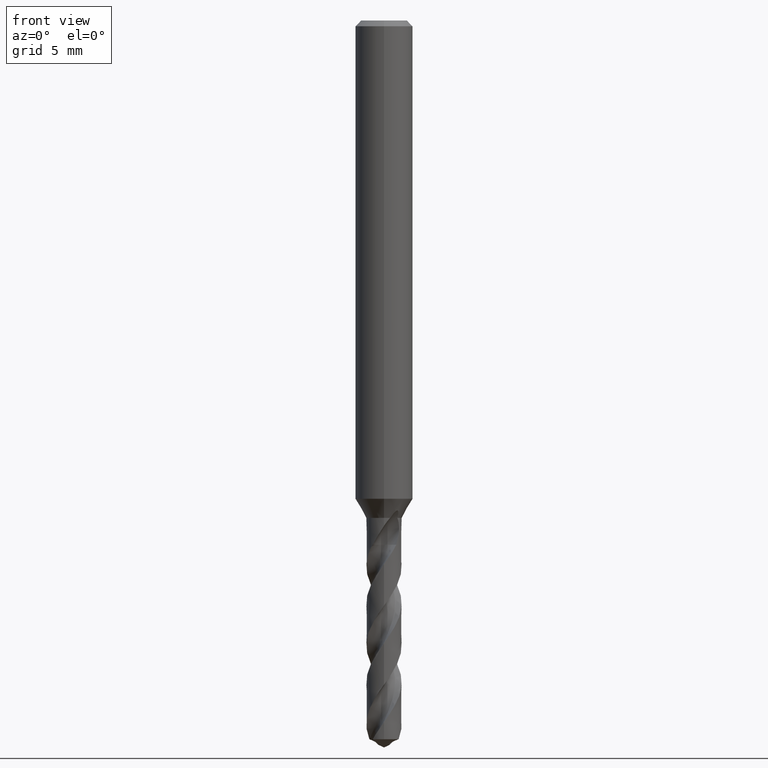
[diagram: clean part render]
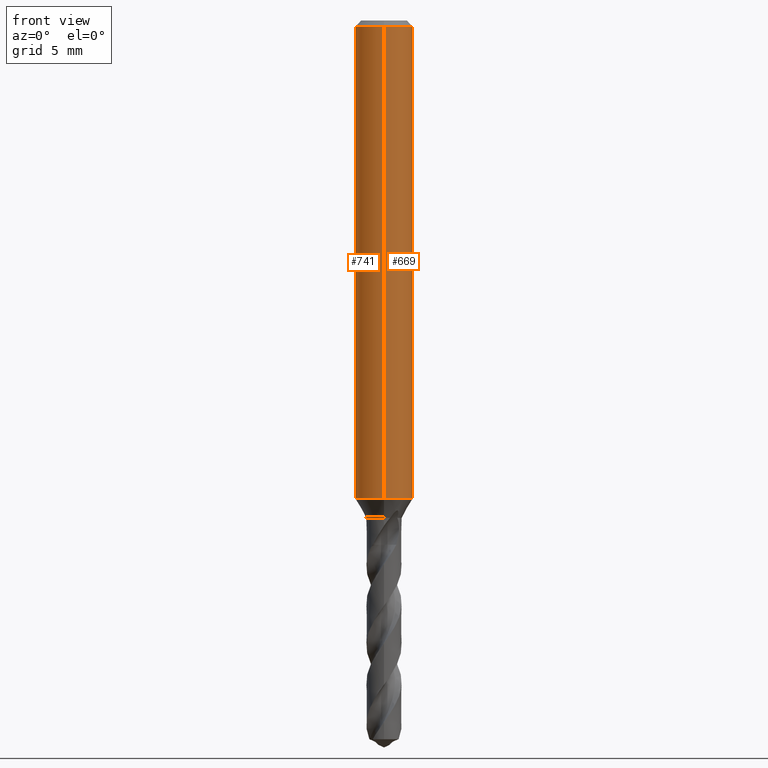
[diagram: same view with one multi-face feature highlighted, each face labeled with its STEP entity id]
A machine part, front view. The highlighted faces form ONE feature: a constant-radius fillet chain: 2 tangent blend faces with common blend radius 1.5 mm. The faces share edges in the B-rep.
Their STEP definitions:
[1] entity #741 (Cylinder):
#299=EDGE_CURVE('',#441,#593,#830,.T.);
#315=VERTEX_POINT('',#848);
#323=EDGE_CURVE('',#359,#507,#856,.T.);
#349=VERTEX_POINT('',#883);
#359=VERTEX_POINT('',#894);
#409=EDGE_CURVE('',#503,#349,#949,.T.);
#417=EDGE_CURVE('',#507,#769,#958,.T.);
#441=VERTEX_POINT('',#985);
#443=VERTEX_POINT('',#987);
#457=EDGE_CURVE('',#593,#503,#1003,.T.);
#469=EDGE_CURVE('',#789,#441,#1017,.T.);
#503=VERTEX_POINT('',#1055);
#507=VERTEX_POINT('',#1060);
#511=EDGE_CURVE('',#795,#789,#1065,.T.);
#515=EDGE_CURVE('',#769,#315,#1070,.T.);
#591=EDGE_CURVE('',#795,#315,#1155,.T.);
#593=VERTEX_POINT('',#1157);
#647=EDGE_CURVE('',#443,#667,#1217,.T.);
#667=VERTEX_POINT('',#1238);
#685=EDGE_CURVE('',#667,#359,#1257,.T.);
#739=EDGE_CURVE('',#349,#443,#1313,.T.);
#741=ADVANCED_FACE('',(#1315),#1316,.T.);
#769=VERTEX_POINT('',#1344);
#789=VERTEX_POINT('',#1368);
#795=VERTEX_POINT('',#1374);
#830=LINE('',#1404,#1405);
#848=CARTESIAN_POINT('',(0.0,1.5,-25.0));
#856=ELLIPSE('',#1468,1.67239264806429,1.5);
#883=CARTESIAN_POINT('',(-0.562333990228013,1.39060435905913,-20.3171221986971));
#894=CARTESIAN_POINT('',(-3.62303867403788E-016,1.5,-21.7128911336578));
#949=B_SPLINE_CURVE_WITH_KNOTS('',3,(#2861,#2862,#2863,#2864,#2865,#2866,#2867,#2868,#2869,#2870,#2871,#2872,#2873,#2874,#2875,#2876,#2877,#2878,#2879,#2880,#2881,#2882,#2883,#2884,#2885,#2886,#2887),.UNSPECIFIED.,.F.,.F.,(4,2,3,2,2,2,2,2,2,2,2,2,4),(-0.555570148161677,-0.277785074080839,0.0,0.277785074080839,0.555570148161677,0.838954672448038,1.1223391967344,1.3938603912747,1.66538158581499,1.94034344792182,2.21530531002864,2.49026717213547,2.76522903424229),.UNSPECIFIED.);
#958=B_SPLINE_CURVE_WITH_KNOTS('',3,(#2910,#2911,#2912,#2913,#2914,#2915,#2916,#2917,#2918,#2919,#2920,#2921,#2922,#2923,#2924,#2925),.UNSPECIFIED.,.F.,.F.,(4,2,2,2,2,2,2,4),(0.656882363151586,0.985323544727379,1.31376472630317,1.61579827194463,1.91783181758608,2.21986536322754,2.52189890886899,2.82957976825427),.UNSPECIFIED.);
#985=CARTESIAN_POINT('',(0.0,1.5,-0.300000000000001));
#987=CARTESIAN_POINT('',(-1.0350734039088,1.08564407082647,-20.3171221986971));
#1003=B_SPLINE_CURVE_WITH_KNOTS('',3,(#3088,#3089,#3090,#3091,#3092,#3093,#3094,#3095,#3096,#3097,#3098,#3099,#3100,#3101,#3102,#3103,#3104,#3105,#3106,#3107,#3108,#3109,#3110,#3111,#3112,#3113,#3114),.UNSPECIFIED.,.F.,.F.,(4,2,3,2,2,2,2,2,2,2,2,2,4),(-0.555570148161677,-0.277785074080839,0.0,0.277785074080839,0.555570148161677,0.838954672448038,1.1223391967344,1.3938603912747,1.66538158581499,1.94034344792182,2.21530531002864,2.49026717213547,2.76522903424229),.UNSPECIFIED.);
#1017=CIRCLE('',#3135,1.5);
#1055=CARTESIAN_POINT('',(-0.486378944383048,1.4189557859429,-20.6432837483006));
#1060=CARTESIAN_POINT('',(-1.337052752443,0.679919066642939,-22.3720803908795));
#1065=LINE('',#3514,#3515);
#1070=LINE('',#3521,#3522);
#1155=CIRCLE('',#3941,1.5);
#1157=CARTESIAN_POINT('',(1.07028167063725E-015,1.5,-21.0232688117743));
#1217=B_SPLINE_CURVE_WITH_KNOTS('',3,(#4473,#4474,#4475,#4476,#4477,#4478,#4479,#4480,#4481,#4482,#4483,#4484,#4485,#4486,#4487,#4488,#4489,#4490,#4491,#4492),.UNSPECIFIED.,.F.,.F.,(4,2,2,2,2,2,2,2,2,4),(3.61773460345543,3.85395724262809,4.09017988180075,4.32640252097341,4.79884779931873,5.25384789829177,5.48134794777829,5.7088479972648,5.95533017953676,6.20181236180872),.UNSPECIFIED.);
#1238=CARTESIAN_POINT('',(1.17859584229481E-016,1.5,-21.5000801551881));
#1257=LINE('',#4735,#4736);
#1313=CIRCLE('',#5056,1.5);
#1315=FACE_OUTER_BOUND('',#5058,.T.);
#1316=CYLINDRICAL_SURFACE('',#5059,1.5);
#1344=CARTESIAN_POINT('',(-1.44945831354929E-017,1.5,-23.0310253601033));
#1368=CARTESIAN_POINT('',(1.83690953073357E-016,-1.5,-0.300000000000001));
#1374=CARTESIAN_POINT('',(1.83690953073357E-016,-1.5,-25.0));
#1404=CARTESIAN_POINT('',(-1.83690953073357E-016,1.5,-12.65));
#1405=VECTOR('',#5275,1.0);
#1468=AXIS2_PLACEMENT_3D('',#5296,#5297,#5298);
#2861=CARTESIAN_POINT('',(0.668140181180239,1.34297754943723,-19.816635075886));
#2862=CARTESIAN_POINT('',(0.72954561541178,1.31242794124006,-19.8788438588981));
#2863=CARTESIAN_POINT('',(0.783560352001634,1.27981669553828,-19.9575082882911));
#2864=CARTESIAN_POINT('',(0.856513351014311,1.23218614058296,-20.132478185051));
#2865=CARTESIAN_POINT('',(0.875400981188567,1.21806121444453,-20.2290469878932));
#2866=CARTESIAN_POINT('',(0.875400981188567,1.21806121444453,-20.3216420125868));
#2867=CARTESIAN_POINT('',(0.875400981188567,1.21806121444453,-20.4142370372804));
#2868=CARTESIAN_POINT('',(0.856513351014311,1.23218614058296,-20.5108058401225));
#2869=CARTESIAN_POINT('',(0.783560352001634,1.27981669553828,-20.6857757368825));
#2870=CARTESIAN_POINT('',(0.72954561541178,1.31242794124006,-20.7644401662755));
#2871=CARTESIAN_POINT('',(0.60549696744429,1.37414296109493,-20.8901117053001));
#2872=CARTESIAN_POINT('',(0.52594358793364,1.40783000818906,-20.945820443328));
#2873=CARTESIAN_POINT('',(0.348504567526036,1.46189827571051,-21.0210790623878));
#2874=CARTESIAN_POINT('',(0.250472190188546,1.48195366272155,-21.0405166027747));
#2875=CARTESIAN_POINT('',(0.0665134459332673,1.50125530483568,-21.0405166027747));
#2876=CARTESIAN_POINT('',(-0.0296567030390787,1.50231596180862,-21.0225191030741));
#2877=CARTESIAN_POINT('',(-0.206115087377689,1.48840496513252,-20.9496420023373));
#2878=CARTESIAN_POINT('',(-0.286451100530325,1.47383453037813,-20.8948020659474));
#2879=CARTESIAN_POINT('',(-0.413930554322423,1.44326440842702,-20.7683224497832));
#2880=CARTESIAN_POINT('',(-0.469556401354002,1.42515667708804,-20.6877724765815));
#2881=CARTESIAN_POINT('',(-0.543783863835251,1.3985185002205,-20.5103125850334));
#2882=CARTESIAN_POINT('',(-0.562348199187247,1.39059861314143,-20.4132959666224));
#2883=CARTESIAN_POINT('',(-0.562348199187247,1.39059861314143,-20.2299880585512));
#2884=CARTESIAN_POINT('',(-0.543783863835251,1.3985185002205,-20.1329714401401));
#2885=CARTESIAN_POINT('',(-0.469556401354002,1.42515667708804,-19.9555115485921));
#2886=CARTESIAN_POINT('',(-0.413930554322424,1.44326440842702,-19.8749615753903));
#2887=CARTESIAN_POINT('',(-0.349789520911262,1.45864570443294,-19.8113236082914));
#2910=CARTESIAN_POINT('',(-1.37998432118956,0.587914341780333,-22.3112692902851));
#2911=CARTESIAN_POINT('',(-1.3420187927796,0.677031105684867,-22.367742000234));
#2912=CARTESIAN_POINT('',(-1.29552710671502,0.762160552391982,-22.4289638354046));
#2913=CARTESIAN_POINT('',(-1.18739688452769,0.921611538394464,-22.5496702342709));
#2914=CARTESIAN_POINT('',(-1.12571460502269,0.995864518486346,-22.6092061584419));
#2915=CARTESIAN_POINT('',(-0.99683873257529,1.12423580420845,-22.7144597063823));
#2916=CARTESIAN_POINT('',(-0.926200605330785,1.18371601339253,-22.7644681671771));
#2917=CARTESIAN_POINT('',(-0.769406154596547,1.29114109676327,-22.8557531235434));
#2918=CARTESIAN_POINT('',(-0.683234987830561,1.33908204140926,-22.8970087462345));
#2919=CARTESIAN_POINT('',(-0.499897730684779,1.4177634331103,-22.9645767271564));
#2920=CARTESIAN_POINT('',(-0.402498520356948,1.44857835781097,-22.9909473368275));
#2921=CARTESIAN_POINT('',(-0.20288430631457,1.48970543263052,-23.0250573425345));
#2922=CARTESIAN_POINT('',(-0.100662581590227,1.5,-23.0327786015796));
#2923=CARTESIAN_POINT('',(0.102544734048809,1.5,-23.0292393371535));
#2924=CARTESIAN_POINT('',(0.206197625002642,1.48932559621363,-23.0175826358192));
#2925=CARTESIAN_POINT('',(0.307013263411802,1.46824482157753,-22.9963679704669));
#3088=CARTESIAN_POINT('',(0.668140181180239,1.34297754943723,-19.816635075886));
#3089=CARTESIAN_POINT('',(0.72954561541178,1.31242794124006,-19.8788438588981));
#3090=CARTESIAN_POINT('',(0.783560352001634,1.27981669553828,-19.9575082882911));
#3091=CARTESIAN_POINT('',(0.856513351014311,1.23218614058296,-20.132478185051));
#3092=CARTESIAN_POINT('',(0.875400981188567,1.21806121444453,-20.2290469878932));
#3093=CARTESIAN_POINT('',(0.875400981188567,1.21806121444453,-20.3216420125868));
#3094=CARTESIAN_POINT('',(0.875400981188567,1.21806121444453,-20.4142370372804));
#3095=CARTESIAN_POINT('',(0.856513351014311,1.23218614058296,-20.5108058401225));
#3096=CARTESIAN_POINT('',(0.783560352001634,1.27981669553828,-20.6857757368825));
#3097=CARTESIAN_POINT('',(0.72954561541178,1.31242794124006,-20.7644401662755));
#3098=CARTESIAN_POINT('',(0.60549696744429,1.37414296109493,-20.8901117053001));
#3099=CARTESIAN_POINT('',(0.52594358793364,1.40783000818906,-20.945820443328));
#3100=CARTESIAN_POINT('',(0.348504567526036,1.46189827571051,-21.0210790623878));
#3101=CARTESIAN_POINT('',(0.250472190188546,1.48195366272155,-21.0405166027747));
#3102=CARTESIAN_POINT('',(0.0665134459332673,1.50125530483568,-21.0405166027747));
#3103=CARTESIAN_POINT('',(-0.0296567030390787,1.50231596180862,-21.0225191030741));
#3104=CARTESIAN_POINT('',(-0.206115087377689,1.48840496513252,-20.9496420023373));
#3105=CARTESIAN_POINT('',(-0.286451100530325,1.47383453037813,-20.8948020659474));
#3106=CARTESIAN_POINT('',(-0.413930554322423,1.44326440842702,-20.7683224497832));
#3107=CARTESIAN_POINT('',(-0.469556401354002,1.42515667708804,-20.6877724765815));
#3108=CARTESIAN_POINT('',(-0.543783863835251,1.3985185002205,-20.5103125850334));
#3109=CARTESIAN_POINT('',(-0.562348199187247,1.39059861314143,-20.4132959666224));
#3110=CARTESIAN_POINT('',(-0.562348199187247,1.39059861314143,-20.2299880585512));
#3111=CARTESIAN_POINT('',(-0.543783863835251,1.3985185002205,-20.1329714401401));
#3112=CARTESIAN_POINT('',(-0.469556401354002,1.42515667708804,-19.9555115485921));
#3113=CARTESIAN_POINT('',(-0.413930554322424,1.44326440842702,-19.8749615753903));
#3114=CARTESIAN_POINT('',(-0.349789520911262,1.45864570443294,-19.8113236082914));
#3135=AXIS2_PLACEMENT_3D('',#5502,#5503,#5504);
#3514=CARTESIAN_POINT('',(1.83690953073357E-016,-1.5,-12.65));
#3515=VECTOR('',#5566,1.0);
#3521=CARTESIAN_POINT('',(-1.83690953073357E-016,1.5,-12.65));
#3522=VECTOR('',#5582,1.0);
#3941=AXIS2_PLACEMENT_3D('',#5693,#5694,#5695);
#4473=CARTESIAN_POINT('',(-1.01123770892783,1.10788009100371,-20.0898428465587));
#4474=CARTESIAN_POINT('',(-1.02715094659726,1.09335499511718,-20.1678544821019));
#4475=CARTESIAN_POINT('',(-1.03510901790186,1.08561011466283,-20.2475609810086));
#4476=CARTESIAN_POINT('',(-1.03510901790186,1.08561011466283,-20.405042740457));
#4477=CARTESIAN_POINT('',(-1.02715094659727,1.09335499511718,-20.4847492393637));
#4478=CARTESIAN_POINT('',(-0.995324471258397,1.12240518689025,-20.64077251045));
#4479=CARTESIAN_POINT('',(-0.971476254759974,1.14359380025859,-20.7171151052056));
#4480=CARTESIAN_POINT('',(-0.878799424638418,1.21819626178867,-20.9348246281265));
#4481=CARTESIAN_POINT('',(-0.787799951048171,1.28194518581036,-21.0651557739127));
#4482=CARTESIAN_POINT('',(-0.580862453220032,1.38765821703569,-21.2690537797624));
#4483=CARTESIAN_POINT('',(-0.451254909174859,1.43810095908109,-21.3583203225889));
#4484=CARTESIAN_POINT('',(-0.234638137082626,1.48336991291967,-21.4485251649733));
#4485=CARTESIAN_POINT('',(-0.158756473505118,1.4935560222756,-21.4715967344684));
#4486=CARTESIAN_POINT('',(-0.00519151045667908,1.50196080434295,-21.5020226044467));
#4487=CARTESIAN_POINT('',(0.0724942156845488,1.50016508612837,-21.5093686300866));
#4488=CARTESIAN_POINT('',(0.229717808295382,1.48458078718634,-21.5093686300866));
#4489=CARTESIAN_POINT('',(0.312170977089979,1.46950282762401,-21.500774090616));
#4490=CARTESIAN_POINT('',(0.472396982425651,1.42608918730169,-21.4669552645128));
#4491=CARTESIAN_POINT('',(0.550176752260779,1.39776510746986,-21.4417489377523));
#4492=CARTESIAN_POINT('',(0.62318254719967,1.36442057770532,-21.409726234769));
#4735=CARTESIAN_POINT('',(-1.83690953073357E-016,1.5,-12.65));
#4736=VECTOR('',#5790,1.0);
#5056=AXIS2_PLACEMENT_3D('',#5824,#5825,#5826);
#5058=EDGE_LOOP('',(#5828,#5829,#5830,#5831,#5832,#5833,#5834,#5835,#5836,#5837,#5838,#5839));
#5059=AXIS2_PLACEMENT_3D('',#5840,#5841,#5842);
#5275=DIRECTION('',(0.0,0.0,-1.0));
#5296=CARTESIAN_POINT('',(0.0,0.0,-21.7128911336578));
#5297=DIRECTION('',(-0.442195774284071,0.0,0.896918556617774));
#5298=DIRECTION('',(0.896918556617774,-0.0,0.442195774284071));
#5502=CARTESIAN_POINT('',(0.0,0.0,-0.300000000000001));
#5503=DIRECTION('',(0.0,0.0,-1.0));
#5504=DIRECTION('',(0.0,1.0,0.0));
#5566=DIRECTION('',(-0.0,-0.0,1.0));
#5582=DIRECTION('',(0.0,0.0,-1.0));
#5693=CARTESIAN_POINT('',(0.0,0.0,-25.0));
#5694=DIRECTION('',(0.0,0.0,-1.0));
#5695=DIRECTION('',(0.0,1.0,0.0));
#5790=DIRECTION('',(0.0,0.0,-1.0));
#5824=CARTESIAN_POINT('',(0.0,0.0,-20.3171221986971));
#5825=DIRECTION('',(0.0,-0.0,1.0));
#5826=DIRECTION('',(0.0,1.0,0.0));
#5828=ORIENTED_EDGE('',*,*,#299,.T.);
#5829=ORIENTED_EDGE('',*,*,#457,.T.);
#5830=ORIENTED_EDGE('',*,*,#409,.T.);
#5831=ORIENTED_EDGE('',*,*,#739,.T.);
#5832=ORIENTED_EDGE('',*,*,#647,.T.);
#5833=ORIENTED_EDGE('',*,*,#685,.T.);
#5834=ORIENTED_EDGE('',*,*,#323,.T.);
#5835=ORIENTED_EDGE('',*,*,#417,.T.);
#5836=ORIENTED_EDGE('',*,*,#515,.T.);
#5837=ORIENTED_EDGE('',*,*,#591,.F.);
#5838=ORIENTED_EDGE('',*,*,#511,.T.);
#5839=ORIENTED_EDGE('',*,*,#469,.T.);
#5840=CARTESIAN_POINT('',(0.0,0.0,-12.65));
#5841=DIRECTION('',(-0.0,-0.0,1.0));
#5842=DIRECTION('',(0.0,1.0,0.0));
[2] entity #669 (Cylinder):
#299=EDGE_CURVE('',#441,#593,#830,.T.);
#315=VERTEX_POINT('',#848);
#331=VERTEX_POINT('',#864);
#347=EDGE_CURVE('',#331,#539,#881,.T.);
#365=EDGE_CURVE('',#441,#789,#900,.T.);
#373=EDGE_CURVE('',#769,#525,#909,.T.);
#379=VERTEX_POINT('',#915);
#383=EDGE_CURVE('',#379,#331,#920,.T.);
#441=VERTEX_POINT('',#985);
#511=EDGE_CURVE('',#795,#789,#1065,.T.);
#515=EDGE_CURVE('',#769,#315,#1070,.T.);
#525=VERTEX_POINT('',#1081);
#539=VERTEX_POINT('',#1098);
#569=EDGE_CURVE('',#631,#745,#1131,.T.);
#593=VERTEX_POINT('',#1157);
#631=VERTEX_POINT('',#1199);
#669=ADVANCED_FACE('',(#1240),#1241,.T.);
#707=EDGE_CURVE('',#525,#379,#1280,.T.);
#721=EDGE_CURVE('',#745,#593,#1294,.T.);
#745=VERTEX_POINT('',#1320);
#769=VERTEX_POINT('',#1344);
#789=VERTEX_POINT('',#1368);
#793=EDGE_CURVE('',#539,#631,#1372,.T.);
#795=VERTEX_POINT('',#1374);
#797=EDGE_CURVE('',#315,#795,#1376,.T.);
#830=LINE('',#1404,#1405);
#848=CARTESIAN_POINT('',(0.0,1.5,-25.0));
#864=CARTESIAN_POINT('',(0.873560781758956,1.21938163040645,-22.7587351791531));
#881=B_SPLINE_CURVE_WITH_KNOTS('',3,(#1976,#1977,#1978,#1979,#1980,#1981,#1982,#1983),.UNSPECIFIED.,.F.,.F.,(4,2,2,4),(3.44494145273238,3.75262234189648,4.09409052256848,4.43555870324049),.UNSPECIFIED.);
#900=CIRCLE('',#2071,1.5);
#909=B_SPLINE_CURVE_WITH_KNOTS('',3,(#2559,#2560,#2561,#2562,#2563,#2564,#2565,#2566,#2567,#2568,#2569,#2570,#2571,#2572,#2573,#2574),.UNSPECIFIED.,.F.,.F.,(4,2,2,2,2,2,2,4),(0.656882363151586,0.985323544727379,1.31376472630317,1.61579827194463,1.91783181758608,2.21986536322754,2.52189890886899,2.82957976825427),.UNSPECIFIED.);
#915=CARTESIAN_POINT('',(0.873560781758957,1.21938163040644,-21.3198931596091));
#920=LINE('',#2609,#2610);
#985=CARTESIAN_POINT('',(0.0,1.5,-0.300000000000001));
#1065=LINE('',#3514,#3515);
#1070=LINE('',#3521,#3522);
#1081=CARTESIAN_POINT('',(0.29010312703583,1.47167937258223,-22.9998328990228));
#1098=CARTESIAN_POINT('',(1.33721006514658,0.679609624468842,-22.2901657003257));
#1131=B_SPLINE_CURVE_WITH_KNOTS('',3,(#3788,#3789,#3790,#3791,#3792,#3793,#3794,#3795,#3796,#3797),.UNSPECIFIED.,.F.,.F.,(4,2,2,2,4),(5.80143132409454,6.14289950153579,6.48436767897705,6.79204857051347,7.0997294620499),.UNSPECIFIED.);
#1157=CARTESIAN_POINT('',(1.07028167063725E-015,1.5,-21.0232688117743));
#1199=CARTESIAN_POINT('',(1.33721006514658,0.679609624468844,-20.5150484364821));
#1240=FACE_OUTER_BOUND('',#4689,.T.);
#1241=CYLINDRICAL_SURFACE('',#4690,1.5);
#1280=ELLIPSE('',#4975,4.57199186005466,1.5);
#1294=B_SPLINE_CURVE_WITH_KNOTS('',3,(#5003,#5004,#5005,#5006,#5007,#5008,#5009,#5010,#5011,#5012,#5013,#5014,#5015,#5016,#5017,#5018,#5019,#5020,#5021,#5022,#5023,#5024,#5025,#5026,#5027,#5028,#5029),.UNSPECIFIED.,.F.,.F.,(4,2,3,2,2,2,2,2,2,2,2,2,4),(-0.555570148161677,-0.277785074080839,0.0,0.277785074080839,0.555570148161677,0.838954672448038,1.1223391967344,1.3938603912747,1.66538158581499,1.94034344792182,2.21530531002864,2.49026717213547,2.76522903424229),.UNSPECIFIED.);
#1320=CARTESIAN_POINT('',(0.799431726384364,1.26921586613551,-20.000000276873));
#1344=CARTESIAN_POINT('',(-1.44945831354929E-017,1.5,-23.0310253601033));
#1368=CARTESIAN_POINT('',(1.83690953073357E-016,-1.5,-0.300000000000001));
#1372=LINE('',#5254,#5255);
#1374=CARTESIAN_POINT('',(1.83690953073357E-016,-1.5,-25.0));
#1376=CIRCLE('',#5260,1.5);
#1404=CARTESIAN_POINT('',(-1.83690953073357E-016,1.5,-12.65));
#1405=VECTOR('',#5275,1.0);
#1976=CARTESIAN_POINT('',(0.85377235345141,1.23331778892629,-22.7716896685764));
#1977=CARTESIAN_POINT('',(0.931827525962819,1.17928358209268,-22.7213967195539));
#1978=CARTESIAN_POINT('',(1.00188140708589,1.11969494995205,-22.6666907649153));
#1979=CARTESIAN_POINT('',(1.13065972950939,0.990366314251407,-22.5504502365922));
#1980=CARTESIAN_POINT('',(1.19231359439054,0.915242251333689,-22.4842345901414));
#1981=CARTESIAN_POINT('',(1.29959340280439,0.755206645619147,-22.3494445634359));
#1982=CARTESIAN_POINT('',(1.34525639772529,0.670378049633869,-22.2808012142433));
#1983=CARTESIAN_POINT('',(1.38233607670672,0.582363263809685,-22.2165347234377));
#2071=AXIS2_PLACEMENT_3D('',#5326,#5327,#5328);
#2559=CARTESIAN_POINT('',(-1.37998432118956,0.587914341780333,-22.3112692902851));
#2560=CARTESIAN_POINT('',(-1.3420187927796,0.677031105684867,-22.367742000234));
#2561=CARTESIAN_POINT('',(-1.29552710671502,0.762160552391982,-22.4289638354046));
#2562=CARTESIAN_POINT('',(-1.18739688452769,0.921611538394464,-22.5496702342709));
#2563=CARTESIAN_POINT('',(-1.12571460502269,0.995864518486346,-22.6092061584419));
#2564=CARTESIAN_POINT('',(-0.99683873257529,1.12423580420845,-22.7144597063823));
#2565=CARTESIAN_POINT('',(-0.926200605330785,1.18371601339253,-22.7644681671771));
#2566=CARTESIAN_POINT('',(-0.769406154596547,1.29114109676327,-22.8557531235434));
#2567=CARTESIAN_POINT('',(-0.683234987830561,1.33908204140926,-22.8970087462345));
#2568=CARTESIAN_POINT('',(-0.499897730684779,1.4177634331103,-22.9645767271564));
#2569=CARTESIAN_POINT('',(-0.402498520356948,1.44857835781097,-22.9909473368275));
#2570=CARTESIAN_POINT('',(-0.20288430631457,1.48970543263052,-23.0250573425345));
#2571=CARTESIAN_POINT('',(-0.100662581590227,1.5,-23.0327786015796));
#2572=CARTESIAN_POINT('',(0.102544734048809,1.5,-23.0292393371535));
#2573=CARTESIAN_POINT('',(0.206197625002642,1.48932559621363,-23.0175826358192));
#2574=CARTESIAN_POINT('',(0.307013263411802,1.46824482157753,-22.9963679704669));
#2609=CARTESIAN_POINT('',(0.873560781758957,1.21938163040644,-22.0393141693811));
#2610=VECTOR('',#5353,1.0);
#3514=CARTESIAN_POINT('',(1.83690953073357E-016,-1.5,-12.65));
#3515=VECTOR('',#5566,1.0);
#3521=CARTESIAN_POINT('',(-1.83690953073357E-016,1.5,-12.65));
#3522=VECTOR('',#5582,1.0);
#3788=CARTESIAN_POINT('',(1.38233607683132,0.582363263513924,-20.588679412779));
#3789=CARTESIAN_POINT('',(1.34525639795916,0.670378049131382,-20.5244129230316));
#3790=CARTESIAN_POINT('',(1.29959340329505,0.755206644680287,-20.455769574626));
#3791=CARTESIAN_POINT('',(1.19231359589767,0.915242249292316,-20.3209795489815));
#3792=CARTESIAN_POINT('',(1.13065973177348,0.990366311544942,-20.2547639028079));
#3793=CARTESIAN_POINT('',(1.0018814103964,1.11969494701727,-20.1385233736042));
#3794=CARTESIAN_POINT('',(0.931827529215927,1.17928357954499,-20.0838174178235));
#3795=CARTESIAN_POINT('',(0.77571718400412,1.28735199393445,-19.9832315170083));
#3796=CARTESIAN_POINT('',(0.689646271470066,1.33582605359774,-19.9373678495874));
#3797=CARTESIAN_POINT('',(0.597730583977961,1.37576093452946,-19.8990923208842));
#4689=EDGE_LOOP('',(#5773,#5774,#5775,#5776,#5777,#5778,#5779,#5780,#5781,#5782,#5783,#5784));
#4690=AXIS2_PLACEMENT_3D('',#5785,#5786,#5787);
#4975=AXIS2_PLACEMENT_3D('',#5804,#5805,#5806);
#5003=CARTESIAN_POINT('',(0.668140181180239,1.34297754943723,-19.816635075886));
#5004=CARTESIAN_POINT('',(0.72954561541178,1.31242794124006,-19.8788438588981));
#5005=CARTESIAN_POINT('',(0.783560352001634,1.27981669553828,-19.9575082882911));
#5006=CARTESIAN_POINT('',(0.856513351014311,1.23218614058296,-20.132478185051));
#5007=CARTESIAN_POINT('',(0.875400981188567,1.21806121444453,-20.2290469878932));
#5008=CARTESIAN_POINT('',(0.875400981188567,1.21806121444453,-20.3216420125868));
#5009=CARTESIAN_POINT('',(0.875400981188567,1.21806121444453,-20.4142370372804));
#5010=CARTESIAN_POINT('',(0.856513351014311,1.23218614058296,-20.5108058401225));
#5011=CARTESIAN_POINT('',(0.783560352001634,1.27981669553828,-20.6857757368825));
#5012=CARTESIAN_POINT('',(0.72954561541178,1.31242794124006,-20.7644401662755));
#5013=CARTESIAN_POINT('',(0.60549696744429,1.37414296109493,-20.8901117053001));
#5014=CARTESIAN_POINT('',(0.52594358793364,1.40783000818906,-20.945820443328));
#5015=CARTESIAN_POINT('',(0.348504567526036,1.46189827571051,-21.0210790623878));
#5016=CARTESIAN_POINT('',(0.250472190188546,1.48195366272155,-21.0405166027747));
#5017=CARTESIAN_POINT('',(0.0665134459332673,1.50125530483568,-21.0405166027747));
#5018=CARTESIAN_POINT('',(-0.0296567030390787,1.50231596180862,-21.0225191030741));
#5019=CARTESIAN_POINT('',(-0.206115087377689,1.48840496513252,-20.9496420023373));
#5020=CARTESIAN_POINT('',(-0.286451100530325,1.47383453037813,-20.8948020659474));
#5021=CARTESIAN_POINT('',(-0.413930554322423,1.44326440842702,-20.7683224497832));
#5022=CARTESIAN_POINT('',(-0.469556401354002,1.42515667708804,-20.6877724765815));
#5023=CARTESIAN_POINT('',(-0.543783863835251,1.3985185002205,-20.5103125850334));
#5024=CARTESIAN_POINT('',(-0.562348199187247,1.39059861314143,-20.4132959666224));
#5025=CARTESIAN_POINT('',(-0.562348199187247,1.39059861314143,-20.2299880585512));
#5026=CARTESIAN_POINT('',(-0.543783863835251,1.3985185002205,-20.1329714401401));
#5027=CARTESIAN_POINT('',(-0.469556401354002,1.42515667708804,-19.9555115485921));
#5028=CARTESIAN_POINT('',(-0.413930554322424,1.44326440842702,-19.8749615753903));
#5029=CARTESIAN_POINT('',(-0.349789520911262,1.45864570443294,-19.8113236082914));
#5254=CARTESIAN_POINT('',(1.33721006514658,0.679609624468842,-21.4026070684039));
#5255=VECTOR('',#5886,1.0);
#5260=AXIS2_PLACEMENT_3D('',#5887,#5888,#5889);
#5275=DIRECTION('',(0.0,0.0,-1.0));
#5326=CARTESIAN_POINT('',(0.0,0.0,-0.300000000000001));
#5327=DIRECTION('',(0.0,0.0,-1.0));
#5328=DIRECTION('',(0.0,1.0,0.0));
#5353=DIRECTION('',(0.0,0.0,-1.0));
#5566=DIRECTION('',(-0.0,-0.0,1.0));
#5582=DIRECTION('',(0.0,0.0,-1.0));
#5773=ORIENTED_EDGE('',*,*,#299,.F.);
#5774=ORIENTED_EDGE('',*,*,#365,.T.);
#5775=ORIENTED_EDGE('',*,*,#511,.F.);
#5776=ORIENTED_EDGE('',*,*,#797,.F.);
#5777=ORIENTED_EDGE('',*,*,#515,.F.);
#5778=ORIENTED_EDGE('',*,*,#373,.T.);
#5779=ORIENTED_EDGE('',*,*,#707,.T.);
#5780=ORIENTED_EDGE('',*,*,#383,.T.);
#5781=ORIENTED_EDGE('',*,*,#347,.T.);
#5782=ORIENTED_EDGE('',*,*,#793,.T.);
#5783=ORIENTED_EDGE('',*,*,#569,.T.);
#5784=ORIENTED_EDGE('',*,*,#721,.T.);
#5785=CARTESIAN_POINT('',(0.0,0.0,-12.65));
#5786=DIRECTION('',(-0.0,-0.0,1.0));
#5787=DIRECTION('',(0.0,1.0,0.0));
#5804=CARTESIAN_POINT('',(0.0,0.0,-23.8351219173269));
#5805=DIRECTION('',(0.944648353914092,0.0,-0.328084573619969));
#5806=DIRECTION('',(0.328084573619969,-0.0,0.944648353914092));
#5886=DIRECTION('',(-0.0,-0.0,1.0));
#5887=CARTESIAN_POINT('',(0.0,0.0,-25.0));
#5888=DIRECTION('',(0.0,0.0,-1.0));
#5889=DIRECTION('',(0.0,1.0,0.0));